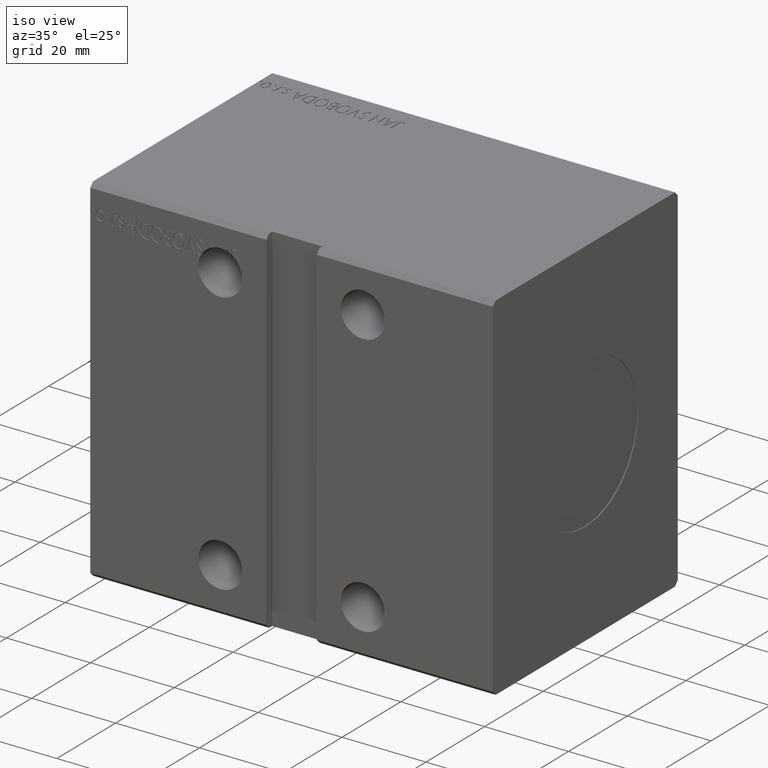
[diagram: clean part render]
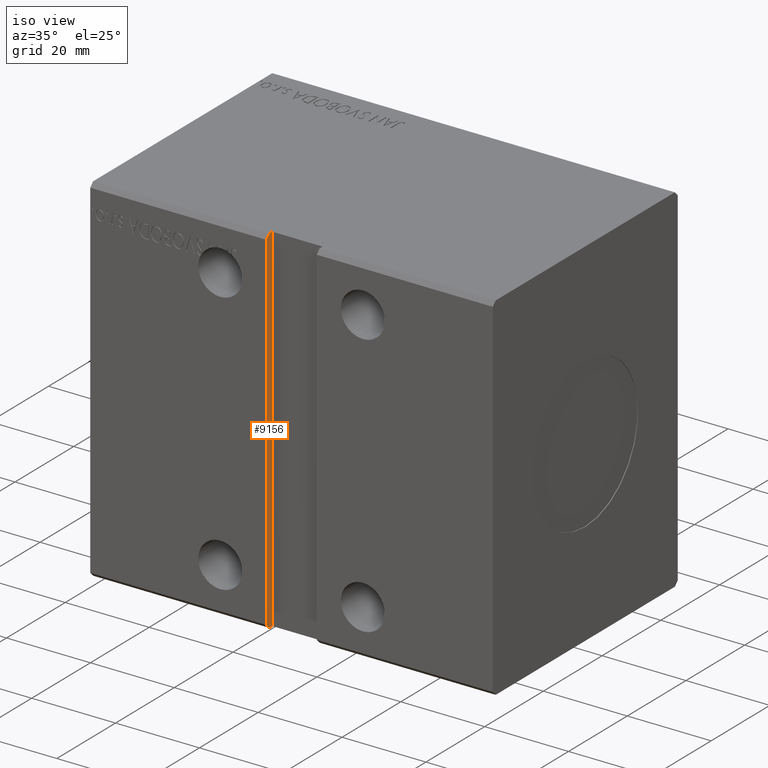
[diagram: same view with one face highlighted and labeled with its STEP entity id]
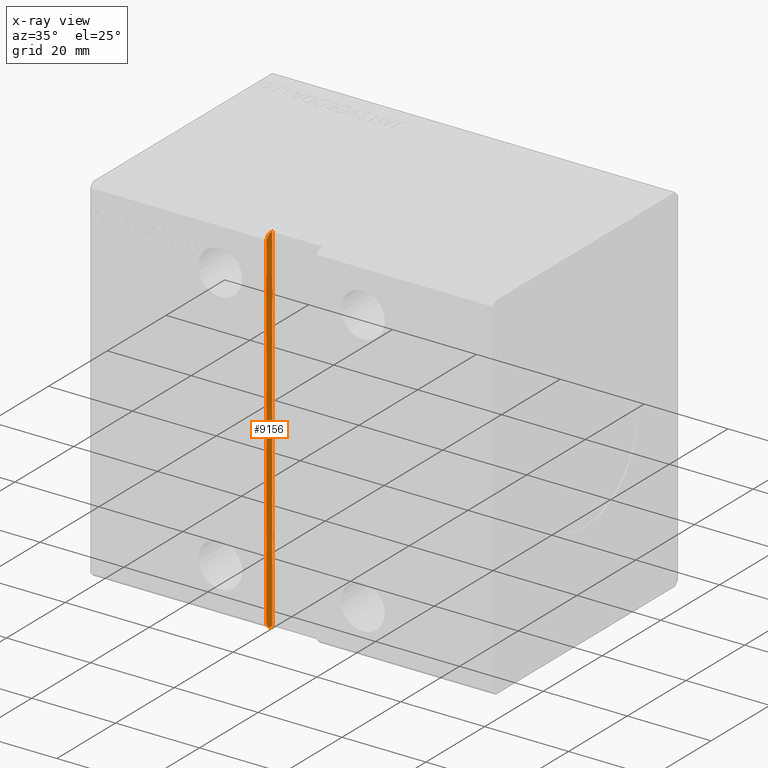
[diagram: x-ray of the same camera — body ghosted, the highlighted face saturated]
A machine part, iso view. The second image highlights one B-rep face of the part: STEP entity #9156.
The next image is the same camera in x-ray: the body ghosted, the highlighted face saturated — about 0% of this face is hidden behind the body in this view.
In plain terms, the highlighted planar face has unit normal (-1, 0, -0).
Its self-contained STEP definition (entity closure, byte-faithful):
#378 = CARTESIAN_POINT ( 'NONE',  ( 42.00000000000001421, -29.50000000000000000, -42.50000000000000711 ) ) ;
#384 = DIRECTION ( 'NONE',  ( -1.154479749032189471E-16, 0.7071067811865463515, 0.7071067811865487940 ) ) ;
#1038 = EDGE_CURVE ( 'NONE', #26235, #19783, #18134, .T. ) ;
#2162 = DIRECTION ( 'NONE',  ( 1.632680918566406547E-16, 0.000000000000000000, -1.000000000000000000 ) ) ;
#2329 = LINE ( 'NONE', #38079, #28580 ) ;
#3509 = CARTESIAN_POINT ( 'NONE',  ( 42.00000000000000000, -29.50000000000000000, 42.49999999999999289 ) ) ;
#3578 = LINE ( 'NONE', #378, #4886 ) ;
#3749 = EDGE_CURVE ( 'NONE', #31035, #33312, #2329, .T. ) ;
#4886 = VECTOR ( 'NONE', #9964, 1000.000000000000000 ) ;
#6926 = CARTESIAN_POINT ( 'NONE',  ( 42.00000000000000000, -31.50000000000000000, 41.49999999999999289 ) ) ;
#7609 = VERTEX_POINT ( 'NONE', #25828 ) ;
#8695 = DIRECTION ( 'NONE',  ( 1.632680918566406547E-16, 0.000000000000000000, -1.000000000000000000 ) ) ;
#9156 = ADVANCED_FACE ( 'NONE', ( #22687 ), #18862, .F. ) ;
#9390 = ORIENTED_EDGE ( 'NONE', *, *, #10161, .T. ) ;
#9427 = CARTESIAN_POINT ( 'NONE',  ( 42.00000000000000000, -29.50000000000000000, 42.49999999999999289 ) ) ;
#9964 = DIRECTION ( 'NONE',  ( -0.000000000000000000, -1.000000000000000000, -5.507058653894625237E-17 ) ) ;
#10161 = EDGE_CURVE ( 'NONE', #31035, #7609, #32007, .T. ) ;
#10748 = VECTOR ( 'NONE', #384, 1000.000000000000000 ) ;
#11344 = CARTESIAN_POINT ( 'NONE',  ( 42.00000000000000000, -31.50000000000000000, -41.50000000000000711 ) ) ;
#11861 = CARTESIAN_POINT ( 'NONE',  ( 42.00000000000000000, -29.50000000000000000, 42.49999999999999289 ) ) ;
#12747 = LINE ( 'NONE', #25739, #20503 ) ;
#14377 = VERTEX_POINT ( 'NONE', #20237 ) ;
#15325 = EDGE_LOOP ( 'NONE', ( #16315, #17991, #20264, #17567, #9390, #33753 ) ) ;
#16315 = ORIENTED_EDGE ( 'NONE', *, *, #1038, .T. ) ;
#17567 = ORIENTED_EDGE ( 'NONE', *, *, #3749, .F. ) ;
#17991 = ORIENTED_EDGE ( 'NONE', *, *, #30743, .F. ) ;
#18134 = LINE ( 'NONE', #37713, #19049 ) ;
#18862 = PLANE ( 'NONE',  #29505 ) ;
#19049 = VECTOR ( 'NONE', #2162, 1000.000000000000000 ) ;
#19783 = VERTEX_POINT ( 'NONE', #11344 ) ;
#20237 = CARTESIAN_POINT ( 'NONE',  ( 42.00000000000001421, -30.50000000000000711, -42.50000000000000711 ) ) ;
#20264 = ORIENTED_EDGE ( 'NONE', *, *, #32764, .F. ) ;
#20503 = VECTOR ( 'NONE', #38711, 1000.000000000000114 ) ;
#22687 = FACE_OUTER_BOUND ( 'NONE', #15325, .T. ) ;
#22895 = DIRECTION ( 'NONE',  ( -1.000000000000000000, 8.991269581639754713E-33, -1.632680918566406547E-16 ) ) ;
#25739 = CARTESIAN_POINT ( 'NONE',  ( 42.00000000000001421, -31.49999999999999289, -41.50000000000001421 ) ) ;
#25828 = CARTESIAN_POINT ( 'NONE',  ( 42.00000000000000000, -30.50000000000000355, 42.49999999999999289 ) ) ;
#25878 = EDGE_CURVE ( 'NONE', #26235, #7609, #33165, .T. ) ;
#26235 = VERTEX_POINT ( 'NONE', #6926 ) ;
#28580 = VECTOR ( 'NONE', #8695, 1000.000000000000000 ) ;
#28805 = DIRECTION ( 'NONE',  ( -0.000000000000000000, -1.000000000000000000, -5.507058653894625237E-17 ) ) ;
#28838 = VECTOR ( 'NONE', #28805, 1000.000000000000000 ) ;
#29505 = AXIS2_PLACEMENT_3D ( 'NONE', #3509, #22895, #35670 ) ;
#30743 = EDGE_CURVE ( 'NONE', #14377, #19783, #12747, .T. ) ;
#31035 = VERTEX_POINT ( 'NONE', #11861 ) ;
#32007 = LINE ( 'NONE', #9427, #28838 ) ;
#32764 = EDGE_CURVE ( 'NONE', #33312, #14377, #3578, .T. ) ;
#33165 = LINE ( 'NONE', #36361, #10748 ) ;
#33312 = VERTEX_POINT ( 'NONE', #39802 ) ;
#33753 = ORIENTED_EDGE ( 'NONE', *, *, #25878, .F. ) ;
#35670 = DIRECTION ( 'NONE',  ( -1.632680918566406547E-16, 0.000000000000000000, 1.000000000000000000 ) ) ;
#36361 = CARTESIAN_POINT ( 'NONE',  ( 42.00000000000000000, -30.50000000000000711, 42.49999999999998579 ) ) ;
#37713 = CARTESIAN_POINT ( 'NONE',  ( 42.00000000000000000, -31.50000000000000000, 42.49999999999999289 ) ) ;
#38079 = CARTESIAN_POINT ( 'NONE',  ( 42.00000000000000000, -29.50000000000000000, 42.49999999999999289 ) ) ;
#38711 = DIRECTION ( 'NONE',  ( -1.154479749032191444E-16, -0.7071067811865451302, 0.7071067811865500152 ) ) ;
#39802 = CARTESIAN_POINT ( 'NONE',  ( 42.00000000000001421, -29.50000000000000000, -42.50000000000000711 ) ) ;